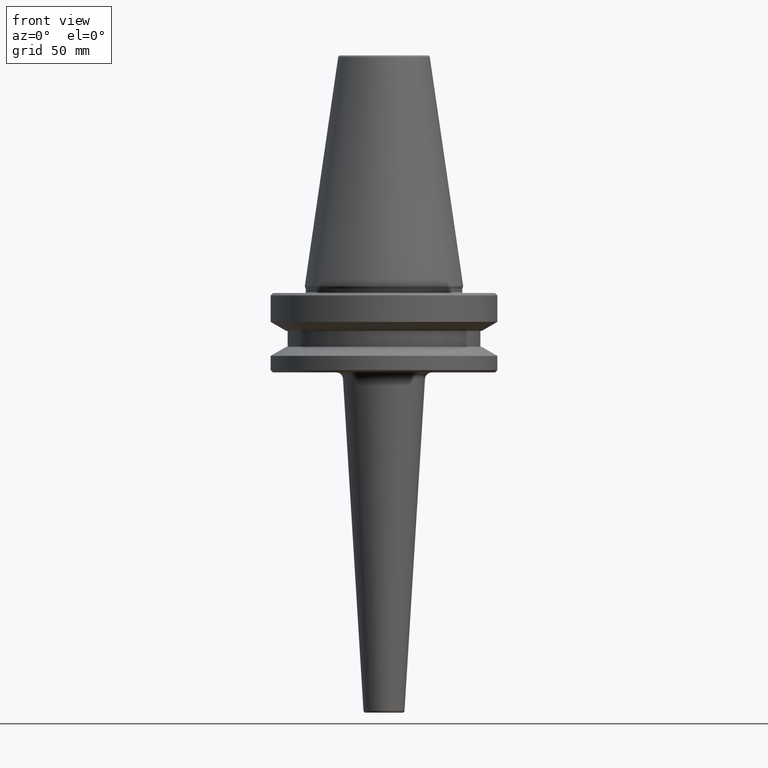
[diagram: clean part render]
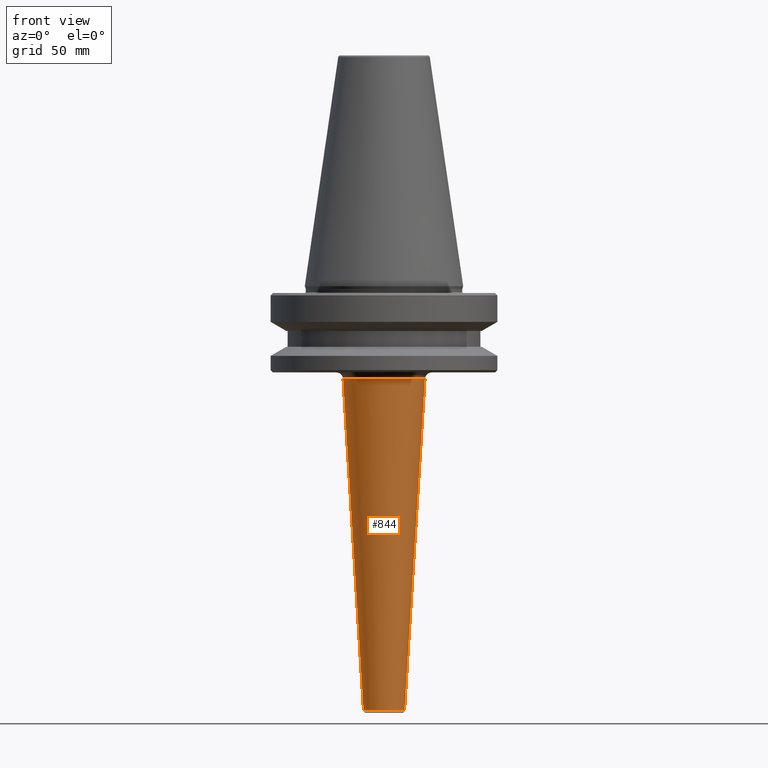
[diagram: same view with one face highlighted and labeled with its STEP entity id]
A machine part, front view. The second image highlights one B-rep face of the part: STEP entity #844.
In plain terms, the highlighted conical surface has half-angle 3.529 deg.
Its self-contained STEP definition (entity closure, byte-faithful):
#10 = VERTEX_POINT ( 'NONE', #782 ) ;
#28 = CARTESIAN_POINT ( 'NONE',  ( 18.25000000000003600, 0.0000000000000000000, -38.00000000000000700 ) ) ;
#31 = ORIENTED_EDGE ( 'NONE', *, *, #332, .T. ) ;
#38 = ORIENTED_EDGE ( 'NONE', *, *, #709, .T. ) ;
#40 = VECTOR ( 'NONE', #516, 1000.000000000000000 ) ;
#65 = LINE ( 'NONE', #687, #262 ) ;
#120 = FACE_OUTER_BOUND ( 'NONE', #264, .T. ) ;
#132 = VERTEX_POINT ( 'NONE', #659 ) ;
#159 = EDGE_CURVE ( 'NONE', #132, #581, #892, .T. ) ;
#180 = DIRECTION ( 'NONE',  ( -1.000000000000000000, 0.0000000000000000000, 0.0000000000000000000 ) ) ;
#196 = ORIENTED_EDGE ( 'NONE', *, *, #205, .F. ) ;
#205 = EDGE_CURVE ( 'NONE', #644, #581, #65, .T. ) ;
#237 = DIRECTION ( 'NONE',  ( 1.000000000000000000, 0.0000000000000000000, 0.0000000000000000000 ) ) ;
#262 = VECTOR ( 'NONE', #570, 1000.000000000000000 ) ;
#264 = EDGE_LOOP ( 'NONE', ( #196, #31, #38, #806 ) ) ;
#313 = CARTESIAN_POINT ( 'NONE',  ( -18.07638670332620000, 2.213718911637821000E-015, -40.81535075687303800 ) ) ;
#328 = DIRECTION ( 'NONE',  ( 1.000000000000000000, 0.0000000000000000000, 0.0000000000000000000 ) ) ;
#332 = EDGE_CURVE ( 'NONE', #644, #10, #530, .T. ) ;
#399 = CARTESIAN_POINT ( 'NONE',  ( -9.057871098891354200, 1.109269284834661600E-015, -187.0615497477090200 ) ) ;
#412 = CARTESIAN_POINT ( 'NONE',  ( 0.0000000000000000000, 0.0000000000000000000, -187.0615497477090200 ) ) ;
#421 = CARTESIAN_POINT ( 'NONE',  ( 0.0000000000000000000, 0.0000000000000000000, -38.00000000000000700 ) ) ;
#445 = AXIS2_PLACEMENT_3D ( 'NONE', #412, #776, #237 ) ;
#510 = AXIS2_PLACEMENT_3D ( 'NONE', #747, #667, #180 ) ;
#516 = DIRECTION ( 'NONE',  ( 0.06154974770898888300, 0.0000000000000000000, 0.9981040169025269200 ) ) ;
#530 = CIRCLE ( 'NONE', #445, 9.057871098891356000 ) ;
#570 = DIRECTION ( 'NONE',  ( -0.06154974770898888300, 7.537670152014037600E-018, 0.9981040169025269200 ) ) ;
#581 = VERTEX_POINT ( 'NONE', #313 ) ;
#644 = VERTEX_POINT ( 'NONE', #399 ) ;
#659 = CARTESIAN_POINT ( 'NONE',  ( 18.07638670332620000, 0.0000000000000000000, -40.81535075687303800 ) ) ;
#667 = DIRECTION ( 'NONE',  ( 0.0000000000000000000, 0.0000000000000000000, -1.000000000000000000 ) ) ;
#669 = LINE ( 'NONE', #28, #40 ) ;
#687 = CARTESIAN_POINT ( 'NONE',  ( -18.25000000000003600, 2.234980408443924300E-015, -38.00000000000000700 ) ) ;
#705 = CONICAL_SURFACE ( 'NONE', #774, 18.25000000000003600, 0.06158867632756011300 ) ;
#709 = EDGE_CURVE ( 'NONE', #10, #132, #669, .T. ) ;
#715 = DIRECTION ( 'NONE',  ( -0.0000000000000000000, -0.0000000000000000000, 1.000000000000000000 ) ) ;
#747 = CARTESIAN_POINT ( 'NONE',  ( 0.0000000000000000000, 0.0000000000000000000, -40.81535075687303800 ) ) ;
#774 = AXIS2_PLACEMENT_3D ( 'NONE', #421, #715, #328 ) ;
#776 = DIRECTION ( 'NONE',  ( -0.0000000000000000000, -0.0000000000000000000, 1.000000000000000000 ) ) ;
#782 = CARTESIAN_POINT ( 'NONE',  ( 9.057871098891354200, 0.0000000000000000000, -187.0615497477090200 ) ) ;
#806 = ORIENTED_EDGE ( 'NONE', *, *, #159, .T. ) ;
#844 = ADVANCED_FACE ( 'NONE', ( #120 ), #705, .T. ) ;
#892 = CIRCLE ( 'NONE', #510, 18.07638670332619700 ) ;